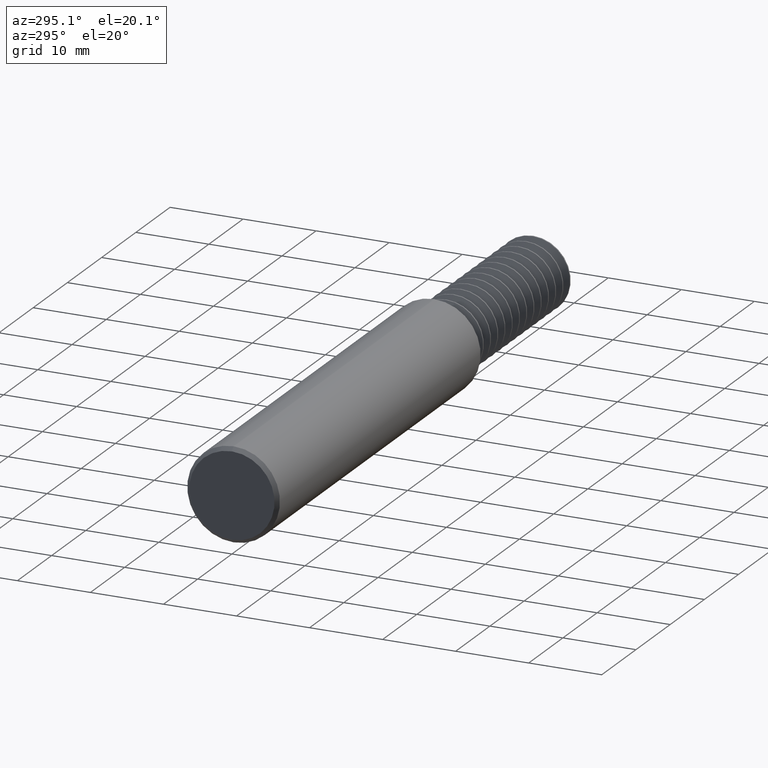
[diagram: clean part render]
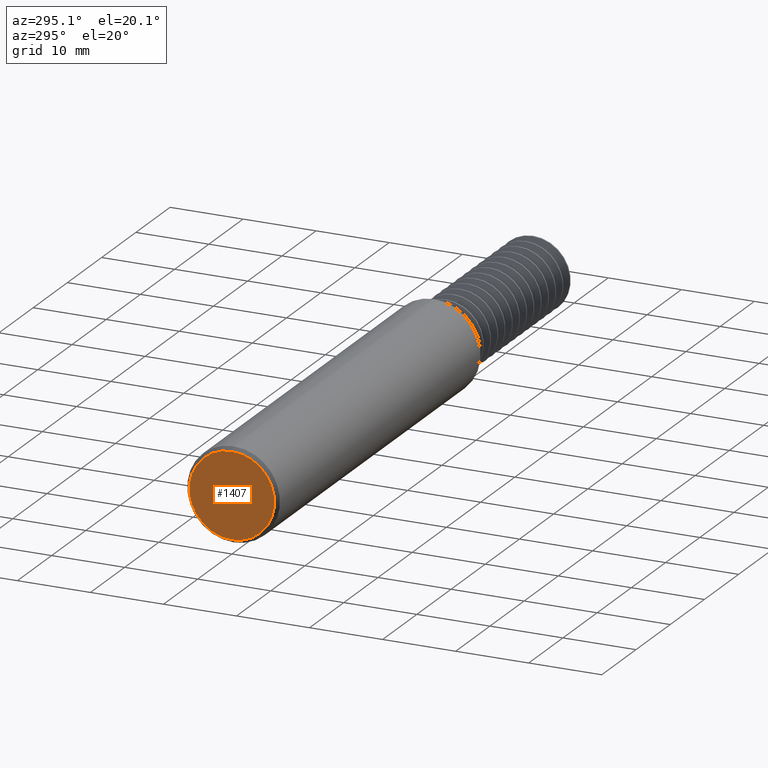
[diagram: same view with one face highlighted and labeled with its STEP entity id]
A machine part, auxiliary view. The second image highlights one B-rep face of the part: STEP entity #1407.
In plain terms, the highlighted planar face has unit normal (1, 0, 0).
Its self-contained STEP definition (entity closure, byte-faithful):
#172 = EDGE_CURVE ( 'NONE', #1392, #707, #569, .T. ) ;
#206 = DIRECTION ( 'NONE',  ( -1.000000000000000000, -0.0000000000000000000, -0.0000000000000000000 ) ) ;
#419 = DIRECTION ( 'NONE',  ( 0.0000000000000000000, 0.0000000000000000000, -1.000000000000000000 ) ) ;
#430 = DIRECTION ( 'NONE',  ( 1.000000000000000000, 0.0000000000000000000, 0.0000000000000000000 ) ) ;
#569 = CIRCLE ( 'NONE', #2728, 0.2298500000000008314 ) ;
#641 = AXIS2_PLACEMENT_3D ( 'NONE', #2494, #430, #643 ) ;
#643 = DIRECTION ( 'NONE',  ( 0.0000000000000000000, 0.0000000000000000000, -1.000000000000000000 ) ) ;
#700 = EDGE_LOOP ( 'NONE', ( #1508, #1891 ) ) ;
#707 = VERTEX_POINT ( 'NONE', #1462 ) ;
#799 = EDGE_CURVE ( 'NONE', #707, #1392, #2822, .T. ) ;
#1107 = CARTESIAN_POINT ( 'NONE',  ( 0.0000000000000000000, 0.0000000000000000000, 0.0000000000000000000 ) ) ;
#1141 = PLANE ( 'NONE',  #641 ) ;
#1153 = FACE_OUTER_BOUND ( 'NONE', #700, .T. ) ;
#1348 = DIRECTION ( 'NONE',  ( 0.0000000000000000000, 0.0000000000000000000, -1.000000000000000000 ) ) ;
#1392 = VERTEX_POINT ( 'NONE', #1821 ) ;
#1407 = ADVANCED_FACE ( 'NONE', ( #1153 ), #1141, .F. ) ;
#1462 = CARTESIAN_POINT ( 'NONE',  ( 0.0000000000000000000, 0.0000000000000000000, -0.2298500000000008314 ) ) ;
#1508 = ORIENTED_EDGE ( 'NONE', *, *, #799, .T. ) ;
#1821 = CARTESIAN_POINT ( 'NONE',  ( 0.0000000000000000000, 2.937315347754931811E-17, 0.2298500000000008314 ) ) ;
#1891 = ORIENTED_EDGE ( 'NONE', *, *, #172, .T. ) ;
#2146 = AXIS2_PLACEMENT_3D ( 'NONE', #1107, #2724, #1348 ) ;
#2270 = CARTESIAN_POINT ( 'NONE',  ( 0.0000000000000000000, 0.0000000000000000000, 0.0000000000000000000 ) ) ;
#2494 = CARTESIAN_POINT ( 'NONE',  ( 0.0000000000000000000, 0.0000000000000000000, 0.0000000000000000000 ) ) ;
#2724 = DIRECTION ( 'NONE',  ( -1.000000000000000000, -0.0000000000000000000, -0.0000000000000000000 ) ) ;
#2728 = AXIS2_PLACEMENT_3D ( 'NONE', #2270, #206, #419 ) ;
#2822 = CIRCLE ( 'NONE', #2146, 0.2298500000000008314 ) ;